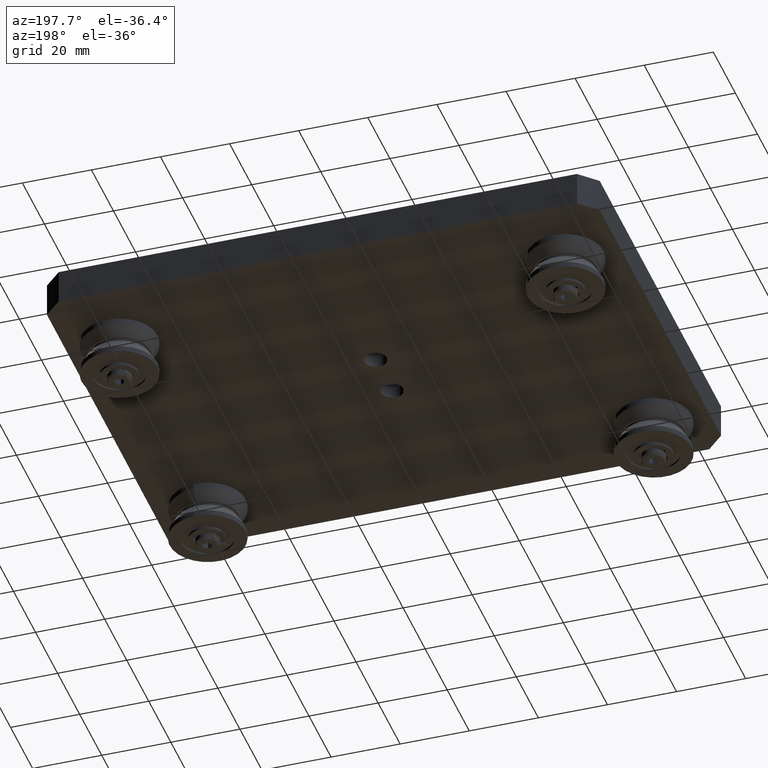
[diagram: clean part render]
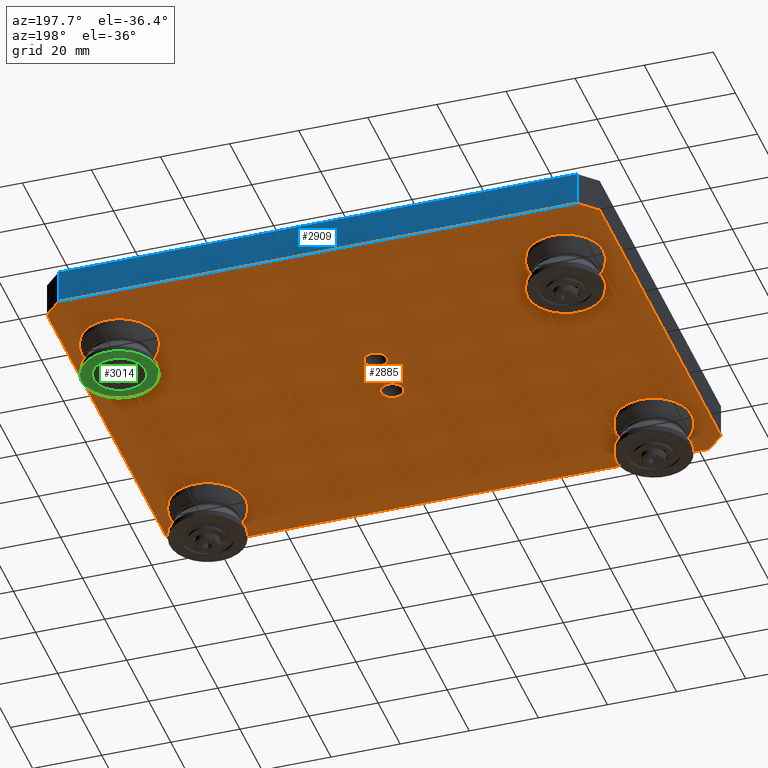
[diagram: same view with three faces highlighted in distinct colors, each labeled with its STEP entity id]
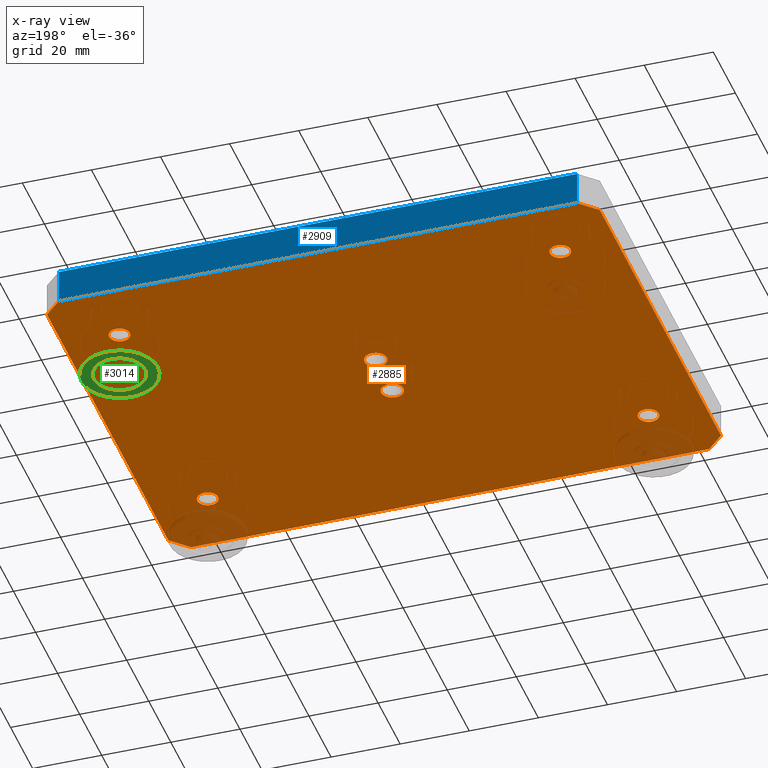
[diagram: x-ray of the same camera — body ghosted, the three highlighted faces saturated]
A machine part, auxiliary view with three faces highlighted in distinct colors.
The next image is the same camera in x-ray (body ghosted, the three faces saturated) — at least one of them is partly hidden behind the body in this view.
Their STEP definitions:

[orange] entity #2885 — the highlighted planar face has unit normal (0, 0, 1).
#233=FACE_BOUND('',#618,.T.);
#234=FACE_BOUND('',#619,.T.);
#235=FACE_BOUND('',#620,.T.);
#236=FACE_BOUND('',#621,.T.);
#237=FACE_BOUND('',#622,.T.);
#238=FACE_BOUND('',#623,.T.);
#275=CIRCLE('',#3294,3.25);
#276=CIRCLE('',#3295,3.25);
#277=CIRCLE('',#3296,3.);
#278=CIRCLE('',#3297,3.);
#279=CIRCLE('',#3298,3.);
#280=CIRCLE('',#3299,3.);
#431=FACE_OUTER_BOUND('',#617,.T.);
#617=EDGE_LOOP('',(#1971,#1972,#1973,#1974,#1975,#1976,#1977,#1978));
#618=EDGE_LOOP('',(#1979));
#619=EDGE_LOOP('',(#1980));
#620=EDGE_LOOP('',(#1981));
#621=EDGE_LOOP('',(#1982));
#622=EDGE_LOOP('',(#1983));
#623=EDGE_LOOP('',(#1984));
#845=LINE('',#4624,#1073);
#847=LINE('',#4628,#1075);
#850=LINE('',#4634,#1078);
#851=LINE('',#4636,#1079);
#852=LINE('',#4638,#1080);
#853=LINE('',#4640,#1081);
#854=LINE('',#4642,#1082);
#855=LINE('',#4643,#1083);
#1073=VECTOR('',#3663,10.);
#1075=VECTOR('',#3667,10.);
#1078=VECTOR('',#3672,10.);
#1079=VECTOR('',#3673,10.);
#1080=VECTOR('',#3674,10.);
#1081=VECTOR('',#3675,10.);
#1082=VECTOR('',#3676,10.);
#1083=VECTOR('',#3677,10.);
#1301=VERTEX_POINT('',#4621);
#1302=VERTEX_POINT('',#4623);
#1303=VERTEX_POINT('',#4627);
#1305=VERTEX_POINT('',#4633);
#1306=VERTEX_POINT('',#4635);
#1307=VERTEX_POINT('',#4637);
#1308=VERTEX_POINT('',#4639);
#1309=VERTEX_POINT('',#4641);
#1310=VERTEX_POINT('',#4644);
#1311=VERTEX_POINT('',#4646);
#1312=VERTEX_POINT('',#4648);
#1313=VERTEX_POINT('',#4650);
#1314=VERTEX_POINT('',#4652);
#1315=VERTEX_POINT('',#4654);
#1559=EDGE_CURVE('',#1301,#1302,#845,.T.);
#1561=EDGE_CURVE('',#1303,#1302,#847,.T.);
#1564=EDGE_CURVE('',#1301,#1305,#850,.T.);
#1565=EDGE_CURVE('',#1306,#1305,#851,.T.);
#1566=EDGE_CURVE('',#1306,#1307,#852,.T.);
#1567=EDGE_CURVE('',#1308,#1307,#853,.T.);
#1568=EDGE_CURVE('',#1308,#1309,#854,.T.);
#1569=EDGE_CURVE('',#1303,#1309,#855,.T.);
#1570=EDGE_CURVE('',#1310,#1310,#275,.T.);
#1571=EDGE_CURVE('',#1311,#1311,#276,.T.);
#1572=EDGE_CURVE('',#1312,#1312,#277,.T.);
#1573=EDGE_CURVE('',#1313,#1313,#278,.T.);
#1574=EDGE_CURVE('',#1314,#1314,#279,.T.);
#1575=EDGE_CURVE('',#1315,#1315,#280,.T.);
#1971=ORIENTED_EDGE('',*,*,#1559,.F.);
#1972=ORIENTED_EDGE('',*,*,#1564,.T.);
#1973=ORIENTED_EDGE('',*,*,#1565,.F.);
#1974=ORIENTED_EDGE('',*,*,#1566,.T.);
#1975=ORIENTED_EDGE('',*,*,#1567,.F.);
#1976=ORIENTED_EDGE('',*,*,#1568,.T.);
#1977=ORIENTED_EDGE('',*,*,#1569,.F.);
#1978=ORIENTED_EDGE('',*,*,#1561,.T.);
#1979=ORIENTED_EDGE('',*,*,#1570,.T.);
#1980=ORIENTED_EDGE('',*,*,#1571,.T.);
#1981=ORIENTED_EDGE('',*,*,#1572,.T.);
#1982=ORIENTED_EDGE('',*,*,#1573,.T.);
#1983=ORIENTED_EDGE('',*,*,#1574,.T.);
#1984=ORIENTED_EDGE('',*,*,#1575,.T.);
#2777=PLANE('',#3293);
#2885=ADVANCED_FACE('',(#431,#233,#234,#235,#236,#237,#238),#2777,.F.);
#3293=AXIS2_PLACEMENT_3D('',#4632,#3670,#3671);
#3294=AXIS2_PLACEMENT_3D('',#4645,#3678,#3679);
#3295=AXIS2_PLACEMENT_3D('',#4647,#3680,#3681);
#3296=AXIS2_PLACEMENT_3D('',#4649,#3682,#3683);
#3297=AXIS2_PLACEMENT_3D('',#4651,#3684,#3685);
#3298=AXIS2_PLACEMENT_3D('',#4653,#3686,#3687);
#3299=AXIS2_PLACEMENT_3D('',#4655,#3688,#3689);
#3663=DIRECTION('',(-0.707106781186548,-0.707106781186548,0.));
#3667=DIRECTION('',(0.,1.,0.));
#3670=DIRECTION('center_axis',(0.,0.,1.));
#3671=DIRECTION('ref_axis',(1.,0.,0.));
#3672=DIRECTION('',(1.,0.,0.));
#3673=DIRECTION('',(-0.707106781186548,0.707106781186548,0.));
#3674=DIRECTION('',(0.,-1.,0.));
#3675=DIRECTION('',(0.707106781186548,0.707106781186548,0.));
#3676=DIRECTION('',(-1.,0.,0.));
#3677=DIRECTION('',(0.707106781186548,-0.707106781186548,0.));
#3678=DIRECTION('center_axis',(0.,0.,1.));
#3679=DIRECTION('ref_axis',(1.,0.,0.));
#3680=DIRECTION('center_axis',(0.,0.,1.));
#3681=DIRECTION('ref_axis',(1.,0.,0.));
#3682=DIRECTION('center_axis',(0.,0.,1.));
#3683=DIRECTION('ref_axis',(1.,0.,0.));
#3684=DIRECTION('center_axis',(0.,0.,1.));
#3685=DIRECTION('ref_axis',(1.,0.,0.));
#3686=DIRECTION('center_axis',(0.,0.,1.));
#3687=DIRECTION('ref_axis',(1.,0.,0.));
#3688=DIRECTION('center_axis',(0.,0.,1.));
#3689=DIRECTION('ref_axis',(1.,0.,0.));
#4621=CARTESIAN_POINT('',(-75.,60.,0.));
#4623=CARTESIAN_POINT('',(-80.,55.,0.));
#4624=CARTESIAN_POINT('',(-72.5,62.5,0.));
#4627=CARTESIAN_POINT('',(-80.,-55.,0.));
#4628=CARTESIAN_POINT('',(-80.,-60.,0.));
#4632=CARTESIAN_POINT('Origin',(0.,-3.46043540142906E-16,0.));
#4633=CARTESIAN_POINT('',(75.,60.,0.));
#4634=CARTESIAN_POINT('',(-80.,60.,0.));
#4635=CARTESIAN_POINT('',(80.,55.,0.));
#4636=CARTESIAN_POINT('',(72.5,62.5,0.));
#4637=CARTESIAN_POINT('',(80.,-55.,0.));
#4638=CARTESIAN_POINT('',(80.,60.,0.));
#4639=CARTESIAN_POINT('',(75.,-60.,0.));
#4640=CARTESIAN_POINT('',(72.5,-62.5,0.));
#4641=CARTESIAN_POINT('',(-75.,-60.,0.));
#4642=CARTESIAN_POINT('',(80.,-60.,0.));
#4643=CARTESIAN_POINT('',(-72.5,-62.5,0.));
#4644=CARTESIAN_POINT('',(-3.25,7.5,0.));
#4645=CARTESIAN_POINT('Origin',(0.,7.5,0.));
#4646=CARTESIAN_POINT('',(-3.25,-7.5,0.));
#4647=CARTESIAN_POINT('Origin',(0.,-7.5,0.));
#4648=CARTESIAN_POINT('',(60.8,-40.,0.));
#4649=CARTESIAN_POINT('Origin',(63.8,-40.,0.));
#4650=CARTESIAN_POINT('',(60.8,40.,0.));
#4651=CARTESIAN_POINT('Origin',(63.8,40.,0.));
#4652=CARTESIAN_POINT('',(-66.8,40.,0.));
#4653=CARTESIAN_POINT('Origin',(-63.8,40.,0.));
#4654=CARTESIAN_POINT('',(-66.8,-40.,0.));
#4655=CARTESIAN_POINT('Origin',(-63.8,-40.,0.));

[blue] entity #2909 — the highlighted planar face has unit normal (0, 1, 0).
#455=FACE_OUTER_BOUND('',#653,.T.);
#653=EDGE_LOOP('',(#2065,#2066,#2067,#2068));
#844=LINE('',#4622,#1072);
#850=LINE('',#4634,#1078);
#858=LINE('',#4661,#1086);
#878=LINE('',#4743,#1106);
#1072=VECTOR('',#3662,10.);
#1078=VECTOR('',#3672,10.);
#1086=VECTOR('',#3694,10.);
#1106=VECTOR('',#3796,10.);
#1300=VERTEX_POINT('',#4619);
#1301=VERTEX_POINT('',#4621);
#1305=VERTEX_POINT('',#4633);
#1316=VERTEX_POINT('',#4657);
#1558=EDGE_CURVE('',#1300,#1301,#844,.T.);
#1564=EDGE_CURVE('',#1301,#1305,#850,.T.);
#1578=EDGE_CURVE('',#1305,#1316,#858,.T.);
#1616=EDGE_CURVE('',#1300,#1316,#878,.T.);
#2065=ORIENTED_EDGE('',*,*,#1558,.F.);
#2066=ORIENTED_EDGE('',*,*,#1616,.T.);
#2067=ORIENTED_EDGE('',*,*,#1578,.F.);
#2068=ORIENTED_EDGE('',*,*,#1564,.F.);
#2789=PLANE('',#3341);
#2909=ADVANCED_FACE('',(#455),#2789,.T.);
#3341=AXIS2_PLACEMENT_3D('',#4742,#3794,#3795);
#3662=DIRECTION('',(0.,0.,-1.));
#3672=DIRECTION('',(1.,0.,0.));
#3694=DIRECTION('',(0.,0.,1.));
#3794=DIRECTION('center_axis',(0.,1.,0.));
#3795=DIRECTION('ref_axis',(0.,0.,1.));
#3796=DIRECTION('',(1.,0.,0.));
#4619=CARTESIAN_POINT('',(-75.,60.,10.));
#4621=CARTESIAN_POINT('',(-75.,60.,0.));
#4622=CARTESIAN_POINT('',(-75.,60.,0.));
#4633=CARTESIAN_POINT('',(75.,60.,0.));
#4634=CARTESIAN_POINT('',(-80.,60.,0.));
#4657=CARTESIAN_POINT('',(75.,60.,10.));
#4661=CARTESIAN_POINT('',(75.,60.,0.));
#4742=CARTESIAN_POINT('Origin',(-80.,60.,0.));
#4743=CARTESIAN_POINT('',(-80.,60.,10.));

[green] entity #3014 — the highlighted planar face has unit normal (0, 0, -1).
#267=FACE_BOUND('',#781,.T.);
#372=CIRCLE('',#3525,7.5);
#373=CIRCLE('',#3527,11.);
#560=FACE_OUTER_BOUND('',#780,.T.);
#780=EDGE_LOOP('',(#2523));
#781=EDGE_LOOP('',(#2524));
#1476=VERTEX_POINT('',#5234);
#1477=VERTEX_POINT('',#5238);
#1837=EDGE_CURVE('',#1476,#1476,#372,.T.);
#1838=EDGE_CURVE('',#1477,#1477,#373,.T.);
#2523=ORIENTED_EDGE('',*,*,#1838,.F.);
#2524=ORIENTED_EDGE('',*,*,#1837,.T.);
#2861=PLANE('',#3526);
#3014=ADVANCED_FACE('',(#560,#267),#2861,.T.);
#3525=AXIS2_PLACEMENT_3D('',#5236,#4298,#4299);
#3526=AXIS2_PLACEMENT_3D('',#5237,#4300,#4301);
#3527=AXIS2_PLACEMENT_3D('',#5239,#4302,#4303);
#4298=DIRECTION('center_axis',(1.,0.,0.));
#4299=DIRECTION('ref_axis',(0.,1.,0.));
#4300=DIRECTION('center_axis',(-1.,0.,0.));
#4301=DIRECTION('ref_axis',(0.,0.,1.));
#4302=DIRECTION('center_axis',(1.,0.,0.));
#4303=DIRECTION('ref_axis',(0.,1.,0.));
#5234=CARTESIAN_POINT('',(-5.50000000000001,-7.5,-9.18485099360515E-16));
#5236=CARTESIAN_POINT('Origin',(-5.50000000000001,0.,0.));
#5237=CARTESIAN_POINT('Origin',(-5.50000000000001,9.25,0.));
#5238=CARTESIAN_POINT('',(-5.50000000000001,-11.,-1.34711147906209E-15));
#5239=CARTESIAN_POINT('Origin',(-5.50000000000001,0.,0.));